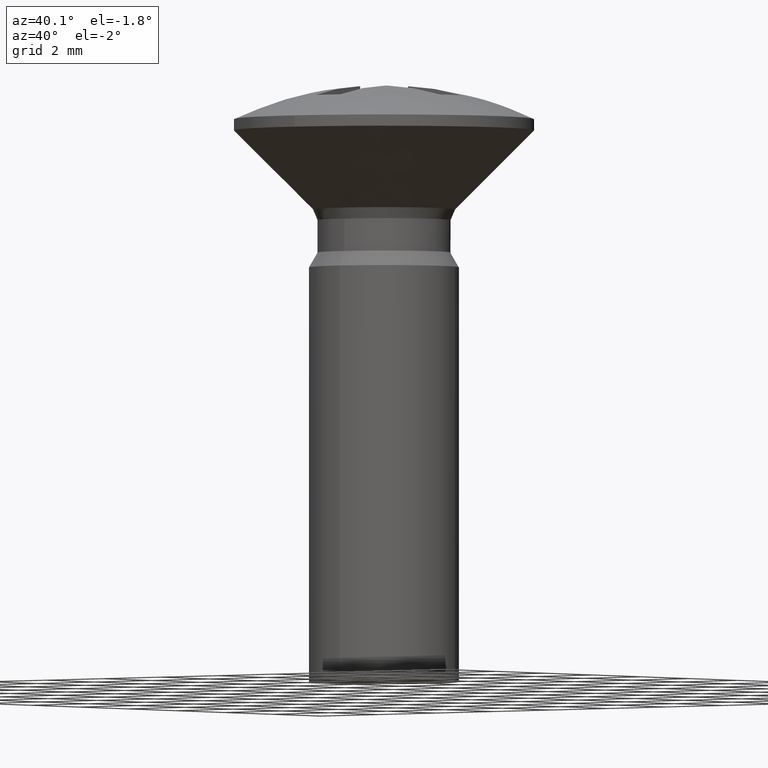
[diagram: clean part render]
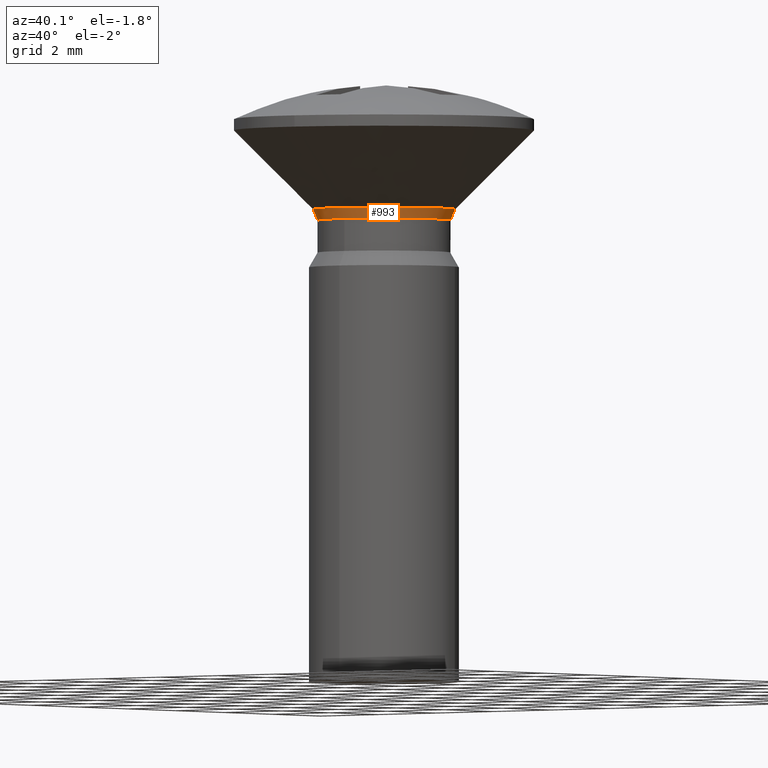
[diagram: same view with one face highlighted and labeled with its STEP entity id]
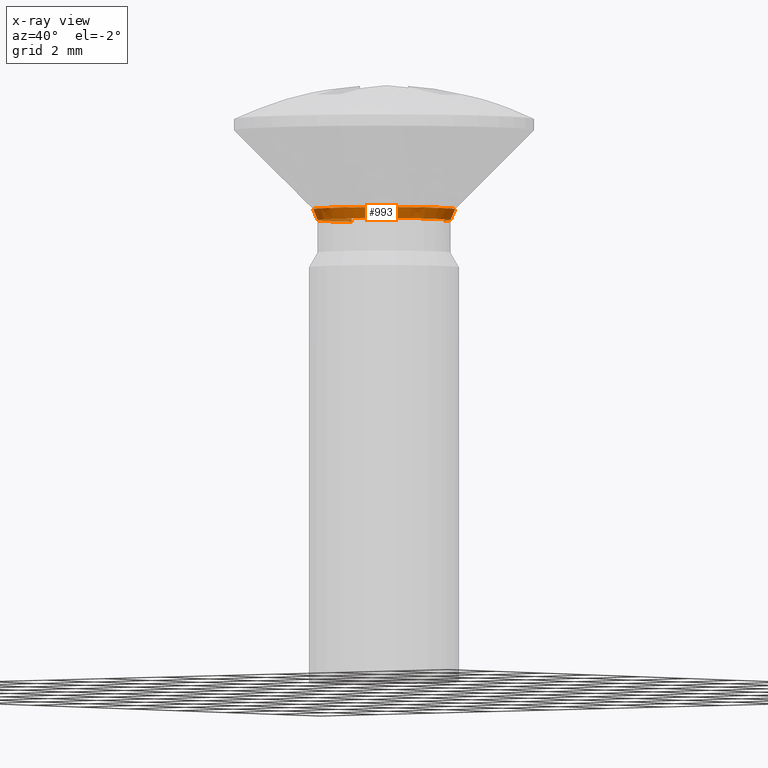
[diagram: x-ray of the same camera — body ghosted, the highlighted face saturated]
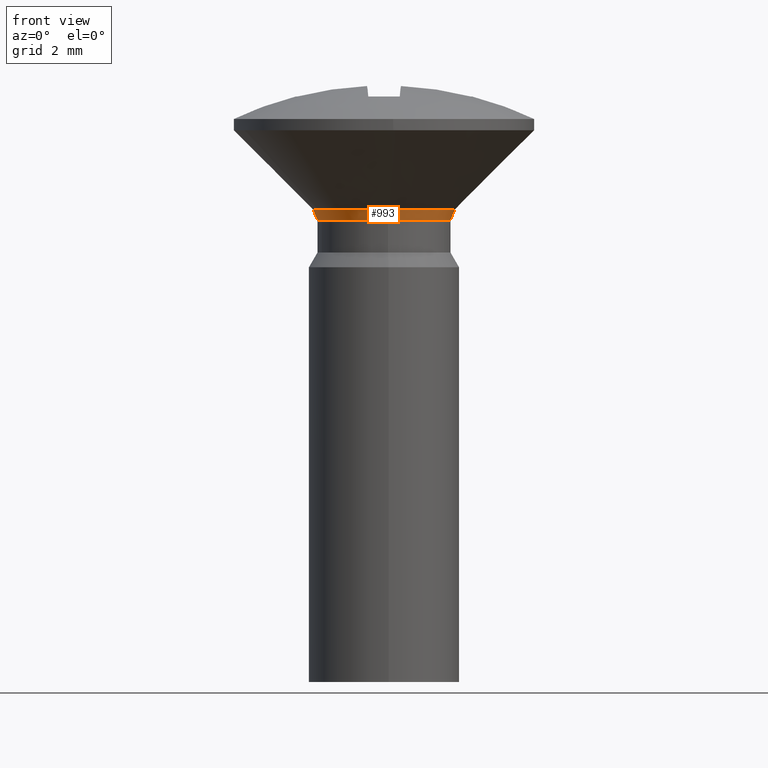
[diagram: same view with one face highlighted and labeled with its STEP entity id]
A machine part, auxiliary view. The second image highlights one B-rep face of the part: STEP entity #993.
The next image is the same camera in x-ray: the body ghosted, the highlighted face saturated — about 4% of this face is hidden behind the body in this view.
A second angle (front view) of the same face is appended — the face is thin or edge-on in the first view.
In plain terms, the highlighted face is a freeform B-spline surface patch.
Its self-contained STEP definition (entity closure, byte-faithful):
#634=CARTESIAN_POINT('',(-1.659315066121397,-0.623241334749140,-2.693200000000000));
#635=VERTEX_POINT('',#634);
#641=CARTESIAN_POINT('',(-1.772500000000000,0.0,-2.693200000000000));
#642=VERTEX_POINT('',#641);
#643=CARTESIAN_POINT('',(-1.659315066121397,-0.623241334749140,-2.693200000000001));
#644=CARTESIAN_POINT('',(-1.772500000000000,-0.321898250505557,-2.693200000000000));
#645=CARTESIAN_POINT('',(-1.772500000000000,0.0,-2.693200000000000));
#653=(BOUNDED_CURVE()B_SPLINE_CURVE(2,(#643,#644,#645),.UNSPECIFIED.,.F.,.U.)B_SPLINE_CURVE_WITH_KNOTS((3,3),(0.940284316050062,1.0),.UNSPECIFIED.)CURVE()GEOMETRIC_REPRESENTATION_ITEM()RATIONAL_B_SPLINE_CURVE((0.893499732266518,0.930038724457023,1.0))REPRESENTATION_ITEM(''));
#654=EDGE_CURVE('',#635,#642,#653,.T.);
#656=CARTESIAN_POINT('',(-1.656098343350883,0.631739287327835,-2.693200645884285));
#657=VERTEX_POINT('',#656);
#658=CARTESIAN_POINT('',(-1.772500000000000,0.0,-2.693200000000000));
#659=CARTESIAN_POINT('',(-1.772500000000000,0.326593486507356,-2.693200000000001));
#660=CARTESIAN_POINT('',(-1.656098343350883,0.631739287327835,-2.693200645884285));
#668=(BOUNDED_CURVE()B_SPLINE_CURVE(2,(#658,#659,#660),.UNSPECIFIED.,.F.,.U.)B_SPLINE_CURVE_WITH_KNOTS((3,3),(0.0,0.060524938776296),.UNSPECIFIED.)CURVE()GEOMETRIC_REPRESENTATION_ITEM()RATIONAL_B_SPLINE_CURVE((1.0,0.929090623453294,0.892515532299825))REPRESENTATION_ITEM(''));
#669=EDGE_CURVE('',#642,#657,#668,.T.);
#671=CARTESIAN_POINT('',(0.725419804165102,1.617257665841364,-2.693200646875453));
#672=VERTEX_POINT('',#671);
#688=CARTESIAN_POINT('',(1.772500000000000,0.0,-2.693200000000000));
#689=VERTEX_POINT('',#688);
#690=CARTESIAN_POINT('',(0.725419804165102,1.617257665841364,-2.693200646875453));
#691=CARTESIAN_POINT('',(1.772500000000001,1.147590570331668,-2.693200000000001));
#692=CARTESIAN_POINT('',(1.772500000000000,0.0,-2.693200000000000));
#700=(BOUNDED_CURVE()B_SPLINE_CURVE(2,(#690,#691,#692),.UNSPECIFIED.,.F.,.U.)B_SPLINE_CURVE_WITH_KNOTS((3,3),(0.319500867819706,0.500000000000000),.UNSPECIFIED.)CURVE()GEOMETRIC_REPRESENTATION_ITEM()RATIONAL_B_SPLINE_CURVE((0.882422386550280,0.788532112730716,1.0))REPRESENTATION_ITEM(''));
#701=EDGE_CURVE('',#672,#689,#700,.T.);
#703=CARTESIAN_POINT('',(0.108208536336982,-1.769193930202059,-2.693200000000000));
#704=VERTEX_POINT('',#703);
#705=CARTESIAN_POINT('',(1.772500000000000,0.0,-2.693200000000000));
#706=CARTESIAN_POINT('',(1.772500000000000,-1.667401503568728,-2.693200000000001));
#707=CARTESIAN_POINT('',(0.108208536336982,-1.769193930202059,-2.693200000000000));
#715=(BOUNDED_CURVE()B_SPLINE_CURVE(2,(#705,#706,#707),.UNSPECIFIED.,.F.,.U.)B_SPLINE_CURVE_WITH_KNOTS((3,3),(0.500000000000000,0.739332962239736),.UNSPECIFIED.)CURVE()GEOMETRIC_REPRESENTATION_ITEM()RATIONAL_B_SPLINE_CURVE((1.0,0.719603993285782,0.976072041668417))REPRESENTATION_ITEM(''));
#716=EDGE_CURVE('',#689,#704,#715,.T.);
#749=CARTESIAN_POINT('',(0.108208536336982,-1.769193930202058,-2.693200000000001));
#750=CARTESIAN_POINT('',(0.054154772958229,-1.772500000000000,-2.693200000000000));
#751=CARTESIAN_POINT('',(0.0,-1.772500000000000,-2.693200000000000));
#752=CARTESIAN_POINT('',(-1.227651713497302,-1.772500000000000,-2.693200000000001));
#753=CARTESIAN_POINT('',(-1.659315066121397,-0.623241334749140,-2.693200000000001));
#761=(BOUNDED_CURVE()B_SPLINE_CURVE(2,(#749,#750,#751,#752,#753),.UNSPECIFIED.,.F.,.U.)B_SPLINE_CURVE_WITH_KNOTS((3,2,3),(0.739332962239735,0.750000000000000,0.940284316050062),.UNSPECIFIED.)CURVE()GEOMETRIC_REPRESENTATION_ITEM()RATIONAL_B_SPLINE_CURVE((0.976072041668416,0.987502787900766,1.0,0.777068056729525,0.893499732266518))REPRESENTATION_ITEM(''));
#762=EDGE_CURVE('',#704,#635,#761,.T.);
#782=CARTESIAN_POINT('',(0.148649267377790,-1.888768024630411,-2.405491297150141));
#783=VERTEX_POINT('',#782);
#784=CARTESIAN_POINT('',(-1.761729005883620,-0.697030964428379,-2.405491297153988));
#785=VERTEX_POINT('',#784);
#786=CARTESIAN_POINT('',(0.148649267377790,-1.888768024630412,-2.405491297150142));
#787=CARTESIAN_POINT('',(0.074439369577239,-1.894608470248300,-2.405491297155846));
#788=CARTESIAN_POINT('',(0.0,-1.894608470248300,-2.405491297155845));
#789=CARTESIAN_POINT('',(-1.287905505730615,-1.894608470248300,-2.405491297155845));
#790=CARTESIAN_POINT('',(-1.761729005883621,-0.697030964428379,-2.405491297153988));
#798=(BOUNDED_CURVE()B_SPLINE_CURVE(2,(#786,#787,#788,#789,#790),.UNSPECIFIED.,.F.,.U.)B_SPLINE_CURVE_WITH_KNOTS((3,2,3),(0.736331300624899,0.750000000000000,0.937532549936117),.UNSPECIFIED.)CURVE()GEOMETRIC_REPRESENTATION_ITEM()RATIONAL_B_SPLINE_CURVE((0.969723356155396,0.983986122572133,1.0,0.780291951267664,0.890203187497438))REPRESENTATION_ITEM(''));
#799=EDGE_CURVE('',#783,#785,#798,.T.);
#842=CARTESIAN_POINT('',(-1.894608470248300,0.0,-2.405491297155845));
#843=VERTEX_POINT('',#842);
#844=CARTESIAN_POINT('',(-1.761729005883621,-0.697030964428379,-2.405491297153988));
#845=CARTESIAN_POINT('',(-1.894608470248300,-0.361181312690504,-2.405491297155846));
#846=CARTESIAN_POINT('',(-1.894608470248300,0.0,-2.405491297155845));
#854=(BOUNDED_CURVE()B_SPLINE_CURVE(2,(#844,#845,#846),.UNSPECIFIED.,.F.,.U.)B_SPLINE_CURVE_WITH_KNOTS((3,3),(0.937532549936118,1.0),.UNSPECIFIED.)CURVE()GEOMETRIC_REPRESENTATION_ITEM()RATIONAL_B_SPLINE_CURVE((0.890203187497439,0.926814829918884,1.0))REPRESENTATION_ITEM(''));
#855=EDGE_CURVE('',#785,#843,#854,.T.);
#863=CARTESIAN_POINT('',(1.894608470248300,0.0,-2.405491297155845));
#864=VERTEX_POINT('',#863);
#865=CARTESIAN_POINT('',(1.894608470248300,0.0,-2.405491297155845));
#866=CARTESIAN_POINT('',(1.894608470248300,-1.751358055231999,-2.405491297155845));
#867=CARTESIAN_POINT('',(0.148649267377790,-1.888768024630411,-2.405491297150141));
#875=(BOUNDED_CURVE()B_SPLINE_CURVE(2,(#865,#866,#867),.UNSPECIFIED.,.F.,.U.)B_SPLINE_CURVE_WITH_KNOTS((3,3),(0.500000000000000,0.736331300624899),.UNSPECIFIED.)CURVE()GEOMETRIC_REPRESENTATION_ITEM()RATIONAL_B_SPLINE_CURVE((1.0,0.723120658614414,0.969723356155396))REPRESENTATION_ITEM(''));
#876=EDGE_CURVE('',#864,#783,#875,.T.);
#878=CARTESIAN_POINT('',(0.775396772911440,1.728670327144489,-2.405491297192886));
#879=VERTEX_POINT('',#878);
#880=CARTESIAN_POINT('',(0.775396772911440,1.728670327144489,-2.405491297192887));
#881=CARTESIAN_POINT('',(1.894608470248301,1.226646821200983,-2.405491297155846));
#882=CARTESIAN_POINT('',(1.894608470248300,0.0,-2.405491297155845));
#890=(BOUNDED_CURVE()B_SPLINE_CURVE(2,(#880,#881,#882),.UNSPECIFIED.,.F.,.U.)B_SPLINE_CURVE_WITH_KNOTS((3,3),(0.319501085437684,0.500000000000000),.UNSPECIFIED.)CURVE()GEOMETRIC_REPRESENTATION_ITEM()RATIONAL_B_SPLINE_CURVE((0.882422160153939,0.788532367686036,1.0))REPRESENTATION_ITEM(''));
#891=EDGE_CURVE('',#879,#864,#890,.T.);
#893=CARTESIAN_POINT('',(-1.770187528371863,0.675260964306666,-2.405491297160171));
#894=VERTEX_POINT('',#893);
#910=CARTESIAN_POINT('',(-1.894608470248300,0.0,-2.405491297155845));
#911=CARTESIAN_POINT('',(-1.894608470248300,0.349093139997091,-2.405491297155845));
#912=CARTESIAN_POINT('',(-1.770187528371863,0.675260964306666,-2.405491297160171));
#920=(BOUNDED_CURVE()B_SPLINE_CURVE(2,(#910,#911,#912),.UNSPECIFIED.,.F.,.U.)B_SPLINE_CURVE_WITH_KNOTS((3,3),(0.0,0.060525011914219),.UNSPECIFIED.)CURVE()GEOMETRIC_REPRESENTATION_ITEM()RATIONAL_B_SPLINE_CURVE((1.0,0.929090537766887,0.892515443905695))REPRESENTATION_ITEM(''));
#921=EDGE_CURVE('',#843,#894,#920,.T.);
#926=CARTESIAN_POINT('',(0.725564155490704,1.617573440931857,-2.709862421631138));
#927=CARTESIAN_POINT('',(2.253125198726837,0.932384434825509,-2.709862421631139));
#928=CARTESIAN_POINT('',(1.656422445822229,-0.631863799815570,-2.709862421631137));
#929=CARTESIAN_POINT('',(1.024558646006658,-2.288286245637798,-2.709862421631137));
#930=CARTESIAN_POINT('',(-0.631863799815570,-1.656422445822229,-2.709862421631137));
#931=CARTESIAN_POINT('',(-2.288286245637797,-1.024558646006659,-2.709862421631137));
#932=CARTESIAN_POINT('',(-1.656422445822228,0.631863799815571,-2.709862421631137));
#933=CARTESIAN_POINT('',(0.722401367616026,1.610522318537421,-2.524504865403654));
#934=CARTESIAN_POINT('',(2.243303659163813,0.928320102040202,-2.524504865403653));
#935=CARTESIAN_POINT('',(1.649201977739089,-0.629109458728870,-2.524504865403654));
#936=CARTESIAN_POINT('',(1.020092519010218,-2.278311436467960,-2.524504865403652));
#937=CARTESIAN_POINT('',(-0.629109458728870,-1.649201977739089,-2.524504865403654));
#938=CARTESIAN_POINT('',(-2.278311436467958,-1.020092519010220,-2.524504865403652));
#939=CARTESIAN_POINT('',(-1.649201977739089,0.629109458728871,-2.524504865403654));
#940=CARTESIAN_POINT('',(0.778268925081348,1.735073506026172,-2.398874602637121));
#941=CARTESIAN_POINT('',(2.416791558977863,1.000112569457721,-2.398874602637121));
#942=CARTESIAN_POINT('',(1.776744491352151,-0.677762202775438,-2.398874602637121));
#943=CARTESIAN_POINT('',(1.098982288576713,-2.454506694127589,-2.398874602637121));
#944=CARTESIAN_POINT('',(-0.677762202775438,-1.776744491352151,-2.398874602637121));
#945=CARTESIAN_POINT('',(-2.454506694127589,-1.098982288576714,-2.398874602637121));
#946=CARTESIAN_POINT('',(-1.776744491352151,0.677762202775439,-2.398874602637121));
#954=(BOUNDED_SURFACE()B_SPLINE_SURFACE(2,2,((#926,#933,#940),(#927,#934,#941),(#928,#935,#942),(#929,#936,#943),(#930,#937,#944),(#931,#938,#945),(#932,#939,#946)),.UNSPECIFIED.,.F.,.F.,.U.)B_SPLINE_SURFACE_WITH_KNOTS((3,2,2,3),(3,3),(0.0,3.024688914054340,6.175406532860944,9.326124151667550),(0.0,0.360988510477454),.UNSPECIFIED.)GEOMETRIC_REPRESENTATION_ITEM()RATIONAL_B_SPLINE_SURFACE(((0.849870668671202,0.826853944484351,0.977505800795127),(0.624964237225924,0.608038568409320,0.718822509939086),(0.869427749666444,0.845881368490876,1.0),(0.614778257540902,0.598128451739255,0.707106781186548),(0.869427749666444,0.845881368490876,1.0),(0.614778257540902,0.598128451739255,0.707106781186548),(0.869427749666444,0.845881368490876,1.0)))REPRESENTATION_ITEM('')SURFACE());
#955=ORIENTED_EDGE('',*,*,#701,.F.);
#956=CARTESIAN_POINT('',(0.725419804165102,1.617257665841364,-2.693200646875452));
#957=CARTESIAN_POINT('',(0.725420819895679,1.617256909357346,-2.523433457278266));
#958=CARTESIAN_POINT('',(0.775396772911440,1.728670327144488,-2.405491297192886));
#966=(BOUNDED_CURVE()B_SPLINE_CURVE(2,(#956,#957,#958),.UNSPECIFIED.,.F.,.U.)B_SPLINE_CURVE_WITH_KNOTS((3,3),(-1.099616550656260,-0.035262421326303),.UNSPECIFIED.)CURVE()GEOMETRIC_REPRESENTATION_ITEM()RATIONAL_B_SPLINE_CURVE((0.848117058501067,0.834260819386719,0.968451719238563))REPRESENTATION_ITEM(''));
#967=EDGE_CURVE('',#672,#879,#966,.T.);
#968=ORIENTED_EDGE('',*,*,#967,.T.);
#969=ORIENTED_EDGE('',*,*,#891,.T.);
#970=ORIENTED_EDGE('',*,*,#876,.T.);
#971=ORIENTED_EDGE('',*,*,#799,.T.);
#972=ORIENTED_EDGE('',*,*,#855,.T.);
#973=ORIENTED_EDGE('',*,*,#921,.T.);
#974=CARTESIAN_POINT('',(-1.656098343350884,0.631739287327835,-2.693200645884285));
#975=CARTESIAN_POINT('',(-1.656097794382005,0.631739957318052,-2.523433456834898));
#976=CARTESIAN_POINT('',(-1.770187528371863,0.675260964306666,-2.405491297160171));
#984=(BOUNDED_CURVE()B_SPLINE_CURVE(2,(#974,#975,#976),.UNSPECIFIED.,.F.,.U.)B_SPLINE_CURVE_WITH_KNOTS((3,3),(-1.099616547497594,-0.035262420983573),.UNSPECIFIED.)CURVE()GEOMETRIC_REPRESENTATION_ITEM()RATIONAL_B_SPLINE_CURVE((0.867633785629657,0.853458689556507,0.990737567528726))REPRESENTATION_ITEM(''));
#985=EDGE_CURVE('',#657,#894,#984,.T.);
#986=ORIENTED_EDGE('',*,*,#985,.F.);
#987=ORIENTED_EDGE('',*,*,#669,.F.);
#988=ORIENTED_EDGE('',*,*,#654,.F.);
#989=ORIENTED_EDGE('',*,*,#762,.F.);
#990=ORIENTED_EDGE('',*,*,#716,.F.);
#991=EDGE_LOOP('',(#955,#968,#969,#970,#971,#972,#973,#986,#987,#988,#989,#990));
#992=FACE_OUTER_BOUND('',#991,.T.);
#993=ADVANCED_FACE('',(#992),#954,.F.);